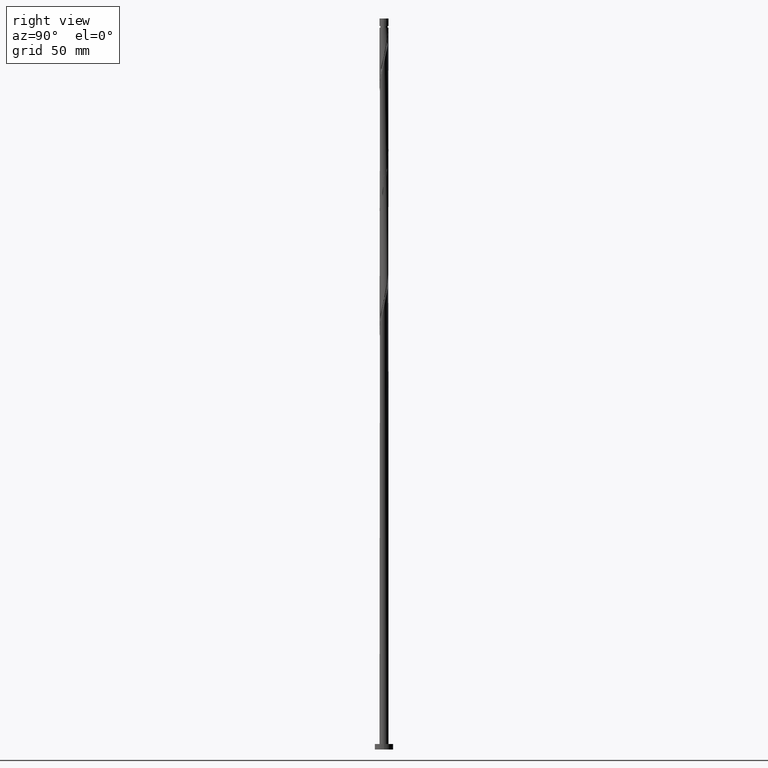
[diagram: clean part render]
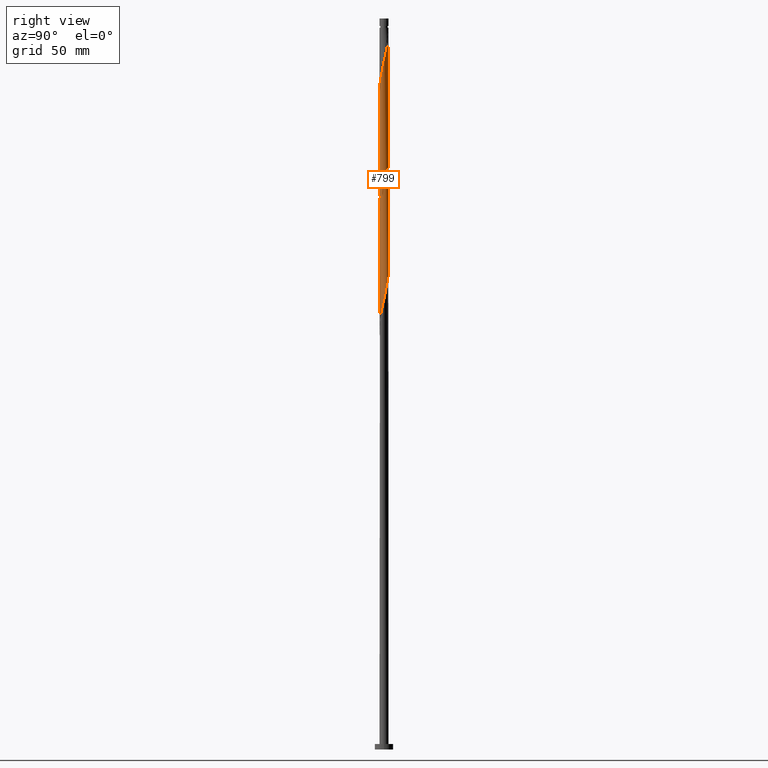
[diagram: same view with one face highlighted and labeled with its STEP entity id]
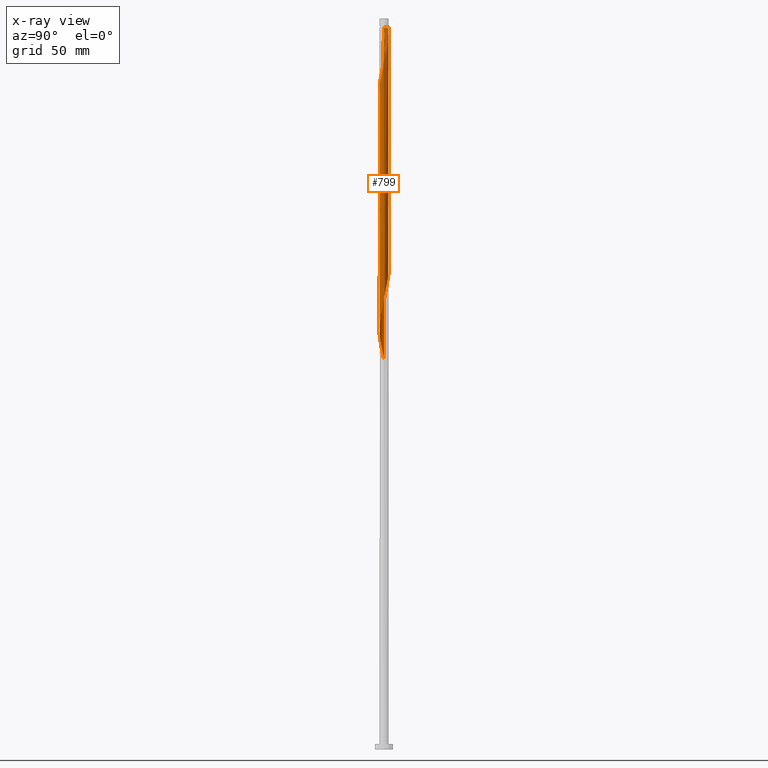
[diagram: x-ray of the same camera — body ghosted, the highlighted face saturated]
A machine part, right view. The second image highlights one B-rep face of the part: STEP entity #799.
The next image is the same camera in x-ray: the body ghosted, the highlighted face saturated — about 0% of this face is hidden behind the body in this view.
In plain terms, the highlighted cylindrical surface (bore or boss wall) has radius 2.5 mm, axis along (-0, -0, -1).
Its self-contained STEP definition (entity closure, byte-faithful):
#11 = CARTESIAN_POINT ( 'NONE',  ( -0.2399883421524077465, 2.502288696838027349, 393.8228365600629104 ) ) ;
#28 = CARTESIAN_POINT ( 'NONE',  ( -2.463495284930619089, -0.5002340530361988336, 344.9339476711741668 ) ) ;
#37 = CARTESIAN_POINT ( 'NONE',  ( 0.2855110527933026887, 2.497504067148895945, 391.6006143378407955 ) ) ;
#40 = CARTESIAN_POINT ( 'NONE',  ( 2.500000000000000000, 3.061616997868383141E-16, 400.0000000000000000 ) ) ;
#41 = CARTESIAN_POINT ( 'NONE',  ( 2.020146441809246962, 1.496011858354682866, 320.4895032267296529 ) ) ;
#45 = CARTESIAN_POINT ( 'NONE',  ( -0.5420216487456060994, -2.440535296260047282, 357.1561698933962816 ) ) ;
#49 = CARTESIAN_POINT ( 'NONE',  ( 2.483822478550887336, 0.2839469933725844997, 314.9339476711741668 ) ) ;
#57 = DIRECTION ( 'NONE',  ( -1.000000000000000000, 0.000000000000000000, 0.000000000000000000 ) ) ;
#58 = CARTESIAN_POINT ( 'NONE',  ( 1.450987902325817869, 2.035837446188699218, 323.8228365600630241 ) ) ;
#68 = CARTESIAN_POINT ( 'NONE',  ( -2.500000000000000444, -2.242262313099710403E-17, 347.0593909146955411 ) ) ;
#75 = CARTESIAN_POINT ( 'NONE',  ( -2.453978446956473825, -0.5450072555163725241, 282.7117254489517109 ) ) ;
#85 = CARTESIAN_POINT ( 'NONE',  ( 1.276653745726374023, -2.165455688813606283, 302.7117254489519382 ) ) ;
#87 = DIRECTION ( 'NONE',  ( -0.000000000000000000, -0.000000000000000000, -1.000000000000000000 ) ) ;
#96 = CARTESIAN_POINT ( 'NONE',  ( 0.7549990949542226826, 2.397711303161974339, 260.4895032267295960 ) ) ;
#99 = CARTESIAN_POINT ( 'NONE',  ( 2.500000000000000444, 5.605655782749277116E-16, 313.7260575813623404 ) ) ;
#105 = CARTESIAN_POINT ( 'NONE',  ( 2.153593095974917215, 1.269660102928799050, 252.7117254489517961 ) ) ;
#114 = CARTESIAN_POINT ( 'NONE',  ( 2.488580897537957526, -0.2386736609037020673, 246.0450587822851958 ) ) ;
#123 = EDGE_LOOP ( 'NONE', ( #1294, #1191, #462, #439, #1424, #124, #1151, #1596 ) ) ;
#124 = ORIENTED_EDGE ( 'NONE', *, *, #242, .F. ) ;
#135 = CARTESIAN_POINT ( 'NONE',  ( 2.463495284930614204, -0.5002340530361990556, 244.9339476711740815 ) ) ;
#143 = CARTESIAN_POINT ( 'NONE',  ( -0.7549990949542216834, -2.397711303161975227, 227.1561698933962816 ) ) ;
#153 = CARTESIAN_POINT ( 'NONE',  ( 2.020146441809247850, -1.496011858354687973, 369.3783921156185670 ) ) ;
#156 = CARTESIAN_POINT ( 'NONE',  ( -2.500000000000000000, 0.000000000000000000, 400.0000000000000000 ) ) ;
#162 = CARTESIAN_POINT ( 'NONE',  ( 1.276653745726379130, 2.165455688813608504, 387.1561698933962248 ) ) ;
#166 = CARTESIAN_POINT ( 'NONE',  ( -0.2855110527933011899, 2.497504067148891949, 331.6006143378406819 ) ) ;
#169 = CARTESIAN_POINT ( 'NONE',  ( 2.384576389766585702, 0.7508631309152021815, 379.3783921156184533 ) ) ;
#173 = EDGE_CURVE ( 'NONE', #748, #1415, #1579, .T. ) ;
#180 = CARTESIAN_POINT ( 'NONE',  ( 1.487816548864316690, 2.009079868229606269, 386.0450587822851958 ) ) ;
#188 = CARTESIAN_POINT ( 'NONE',  ( 0.000000000000000000, 0.000000000000000000, 394.9339476711740531 ) ) ;
#191 = CARTESIAN_POINT ( 'NONE',  ( -0.7985322446979098432, -2.383566525371198619, 356.0450587822851958 ) ) ;
#195 = CARTESIAN_POINT ( 'NONE',  ( -0.02276135532044734275, 2.499896381993457872, 330.4895032267296529 ) ) ;
#202 = CARTESIAN_POINT ( 'NONE',  ( 0.000000000000000000, 0.000000000000000000, 400.0000000000000000 ) ) ;
#222 = CARTESIAN_POINT ( 'NONE',  ( 1.037592995212140989, -2.274511107092400231, 301.6006143378408524 ) ) ;
#230 = CARTESIAN_POINT ( 'NONE',  ( -0.5420216487456041010, 2.440535296260043729, 266.0450587822851958 ) ) ;
#237 = AXIS2_PLACEMENT_3D ( 'NONE', #188, #1208, #1654 ) ;
#240 = CARTESIAN_POINT ( 'NONE',  ( -2.463495284930614204, 0.5002340530361987225, 278.2672810045073675 ) ) ;
#242 = EDGE_CURVE ( 'NONE', #1886, #1011, #1652, .T. ) ;
#248 = CARTESIAN_POINT ( 'NONE',  ( -0.7549990949542216834, -2.397711303161975227, 293.8228365600629104 ) ) ;
#257 = CARTESIAN_POINT ( 'NONE',  ( -0.4974937185533805373, 2.450000000000672085, 394.9339476711740531 ) ) ;
#274 = CARTESIAN_POINT ( 'NONE',  ( -2.305657494602547875, 1.001492208794207084, 342.7117254489518245 ) ) ;
#287 = CARTESIAN_POINT ( 'NONE',  ( 1.873015379995216279, -1.655842198490355965, 239.3783921156185102 ) ) ;
#298 = CARTESIAN_POINT ( 'NONE',  ( 2.453978446956473825, 0.5450072555163718580, 249.3783921156185386 ) ) ;
#310 = CARTESIAN_POINT ( 'NONE',  ( -2.305657494602551427, -1.001492208794207972, 347.1561698933963953 ) ) ;
#318 = CARTESIAN_POINT ( 'NONE',  ( 0.7549990949542207952, -2.397711303161981000, 362.7117254489518814 ) ) ;
#327 = CARTESIAN_POINT ( 'NONE',  ( 2.370509098548533533, -0.7941578015096472098, 372.7117254489518814 ) ) ;
#339 = CARTESIAN_POINT ( 'NONE',  ( -1.487816548864312916, 2.009079868229604049, 337.1561698933963385 ) ) ;
#343 = CARTESIAN_POINT ( 'NONE',  ( 2.047051407988187410, 1.458980349335109006, 382.7117254489518814 ) ) ;
#358 = CARTESIAN_POINT ( 'NONE',  ( -1.450987902325817203, -2.035837446188699662, 290.4895032267295392 ) ) ;
#368 = CARTESIAN_POINT ( 'NONE',  ( 2.384576389766580373, -0.7508631309152045130, 310.4895032267295960 ) ) ;
#377 = CARTESIAN_POINT ( 'NONE',  ( -1.037592995212140989, 2.274511107092400231, 268.2672810045074243 ) ) ;
#386 = CARTESIAN_POINT ( 'NONE',  ( 1.487816548864312693, -2.009079868229604493, 303.8228365600628536 ) ) ;
#397 = CARTESIAN_POINT ( 'NONE',  ( -2.153593095974917215, -1.269660102928799050, 286.0450587822852526 ) ) ;
#407 = CARTESIAN_POINT ( 'NONE',  ( 2.047051407988181193, -1.458980349335108784, 240.4895032267296813 ) ) ;
#415 = CARTESIAN_POINT ( 'NONE',  ( -2.370509098548531757, -0.7941578015096437682, 217.1561698933963385 ) ) ;
#424 = CARTESIAN_POINT ( 'NONE',  ( 1.698979352002251808, -1.852704047645603147, 238.2672810045074243 ) ) ;
#432 = CARTESIAN_POINT ( 'NONE',  ( -0.2399883421524073857, -2.502288696838022908, 229.3783921156185102 ) ) ;
#439 = ORIENTED_EDGE ( 'NONE', *, *, #943, .T. ) ;
#442 = CARTESIAN_POINT ( 'NONE',  ( 0.5420216487456031018, -2.440535296260043729, 232.7117254489518814 ) ) ;
#462 = ORIENTED_EDGE ( 'NONE', *, *, #1627, .F. ) ;
#463 = CARTESIAN_POINT ( 'NONE',  ( 0.2399883421524056648, -2.502288696838027349, 360.4895032267296529 ) ) ;
#466 = DIRECTION ( 'NONE',  ( -0.000000000000000000, -0.000000000000000000, -1.000000000000000000 ) ) ;
#472 = CARTESIAN_POINT ( 'NONE',  ( -0.4974937185533805373, 2.450000000000672085, 394.9339476711740531 ) ) ;
#476 = CARTESIAN_POINT ( 'NONE',  ( 2.370509098548532201, 0.7941578015096426579, 317.1561698933962816 ) ) ;
#479 = CARTESIAN_POINT ( 'NONE',  ( 1.698979352002256027, 1.852704047645605367, 384.9339476711741668 ) ) ;
#488 = CARTESIAN_POINT ( 'NONE',  ( 2.453978446956477821, -0.5450072555163764099, 373.8228365600629104 ) ) ;
#500 = CARTESIAN_POINT ( 'NONE',  ( 2.463495284930614204, -0.5002340530361990556, 311.6006143378407387 ) ) ;
#518 = CARTESIAN_POINT ( 'NONE',  ( 1.698979352002251808, -1.852704047645603147, 304.9339476711741099 ) ) ;
#526 = CARTESIAN_POINT ( 'NONE',  ( 0.2855110527933008013, -2.497504067148891949, 298.2672810045073675 ) ) ;
#544 = CARTESIAN_POINT ( 'NONE',  ( 1.237012764418925936, 2.188342420042401759, 258.2672810045074243 ) ) ;
#552 = CARTESIAN_POINT ( 'NONE',  ( -1.237012764418925492, -2.188342420042401759, 224.9339476711741099 ) ) ;
#565 = CARTESIAN_POINT ( 'NONE',  ( -2.047051407988182525, 1.458980349335108118, 340.4895032267295960 ) ) ;
#570 = CARTESIAN_POINT ( 'NONE',  ( 0.02276135532044670784, -2.499896381993457428, 230.4895032267296244 ) ) ;
#575 = EDGE_CURVE ( 'NONE', #748, #1031, #1776, .T. ) ;
#594 = VERTEX_POINT ( 'NONE', #897 ) ;
#603 = CARTESIAN_POINT ( 'NONE',  ( -2.500000000000004441, 1.180924818232504868E-15, 342.8085044276526219 ) ) ;
#604 = VECTOR ( 'NONE', #466, 1000.000000000000000 ) ;
#613 = CARTESIAN_POINT ( 'NONE',  ( 2.176354451295368087, 1.230236279064657712, 381.6006143378406819 ) ) ;
#617 = DIRECTION ( 'NONE',  ( -0.000000000000000000, -0.000000000000000000, -1.000000000000000000 ) ) ;
#629 = CARTESIAN_POINT ( 'NONE',  ( -0.2855110527933024667, -2.497504067148895945, 358.2672810045074812 ) ) ;
#647 = CARTESIAN_POINT ( 'NONE',  ( -2.500000000000000444, -1.621903073142123928E-15, 213.7260575813622552 ) ) ;
#648 = CARTESIAN_POINT ( 'NONE',  ( 2.305657494602547430, -1.001492208794207972, 309.3783921156185102 ) ) ;
#659 = CARTESIAN_POINT ( 'NONE',  ( -2.483822478550887336, -0.2839469933725847772, 281.6006143378407955 ) ) ;
#669 = CARTESIAN_POINT ( 'NONE',  ( -2.488580897537957526, 0.2386736609037011514, 279.3783921156185670 ) ) ;
#679 = CARTESIAN_POINT ( 'NONE',  ( 2.047051407988181193, -1.458980349335108784, 307.1561698933963385 ) ) ;
#687 = CARTESIAN_POINT ( 'NONE',  ( 2.176354451295364090, -1.230236279064657490, 241.6006143378408240 ) ) ;
#705 = CARTESIAN_POINT ( 'NONE',  ( 1.664963040232708247, 1.883332472334996455, 256.0450587822851958 ) ) ;
#714 = CARTESIAN_POINT ( 'NONE',  ( 2.370509098548532201, 0.7941578015096426579, 250.4895032267296244 ) ) ;
#725 = CARTESIAN_POINT ( 'NONE',  ( -1.664963040232708025, -1.883332472334996677, 222.7117254489519098 ) ) ;
#733 = CARTESIAN_POINT ( 'NONE',  ( 2.287039750140592798, -1.043308347502918565, 371.6006143378407955 ) ) ;
#748 = VERTEX_POINT ( 'NONE', #1073 ) ;
#757 = CARTESIAN_POINT ( 'NONE',  ( 0.02276135532044929258, 2.499896381993460981, 392.7117254489518245 ) ) ;
#763 = CARTESIAN_POINT ( 'NONE',  ( 0.7549990949542226826, 2.397711303161974339, 327.1561698933962816 ) ) ;
#766 = CARTESIAN_POINT ( 'NONE',  ( -2.047051407988186522, -1.458980349335109228, 349.3783921156186807 ) ) ;
#778 = DIRECTION ( 'NONE',  ( -0.000000000000000000, -0.000000000000000000, -1.000000000000000000 ) ) ;
#780 = CARTESIAN_POINT ( 'NONE',  ( -0.5420216487456041010, 2.440535296260043729, 332.7117254489518245 ) ) ;
#791 = CARTESIAN_POINT ( 'NONE',  ( -1.664963040232708025, -1.883332472334996677, 289.3783921156185102 ) ) ;
#799 = ADVANCED_FACE ( 'NONE', ( #1511 ), #1670, .T. ) ;
#801 = CARTESIAN_POINT ( 'NONE',  ( 0.7985322446979064015, -2.383566525371196398, 300.4895032267297097 ) ) ;
#809 = CARTESIAN_POINT ( 'NONE',  ( -1.237012764418925492, -2.188342420042401759, 291.6006143378407955 ) ) ;
#819 = CARTESIAN_POINT ( 'NONE',  ( 2.488580897537957526, -0.2386736609037020673, 312.7117254489518814 ) ) ;
#828 = CARTESIAN_POINT ( 'NONE',  ( 2.500000000000000888, -0.1196099982168686432, 313.2175090557983026 ) ) ;
#854 = VERTEX_POINT ( 'NONE', #647 ) ;
#861 = CARTESIAN_POINT ( 'NONE',  ( -2.500000000000000444, -2.242262313099710403E-17, 347.0593909146955411 ) ) ;
#865 = CARTESIAN_POINT ( 'NONE',  ( -0.4974937185533138684, -2.449999999999998845, 228.2672810045074243 ) ) ;
#876 = CARTESIAN_POINT ( 'NONE',  ( 2.020146441809246962, 1.496011858354682866, 253.8228365600629957 ) ) ;
#886 = CARTESIAN_POINT ( 'NONE',  ( 1.873015379995221386, 1.655842198490355521, 383.8228365600628536 ) ) ;
#894 = CARTESIAN_POINT ( 'NONE',  ( 2.483822478550890889, -0.2839469933725862205, 374.9339476711739962 ) ) ;
#897 = CARTESIAN_POINT ( 'NONE',  ( -2.500000000000004441, 1.180924818232504868E-15, 342.8085044276526219 ) ) ;
#898 = CARTESIAN_POINT ( 'NONE',  ( 1.664963040232708247, 1.883332472334996455, 322.7117254489518245 ) ) ;
#901 = CARTESIAN_POINT ( 'NONE',  ( 0.5420216487456075427, 2.440535296260046838, 390.4895032267295392 ) ) ;
#906 = CARTESIAN_POINT ( 'NONE',  ( -1.873015379995216945, 1.655842198490355077, 339.3783921156185670 ) ) ;
#909 =( BOUNDED_CURVE ( )  B_SPLINE_CURVE ( 2, ( #1811, #828, #819, #500, #368, #648, #1400, #679, #955, #518, #386, #85, #222, #801, #974, #526, #1084, #1559, #1234, #248, #1671, #809, #358, #791, #1408, #1258, #397, #1821, #1390, #75, #659, #1243, #669, #240, #1102, #963, #935, #1379, #1093, #1681, #1690, #1110, #377, #1543, #230, #1249, #1839, #1698, #1552, #96, #1849, #544, #1022, #705, #1449, #876, #105, #1607, #714, #298, #1859, #1887, #114, #135, #1295, #1012, #687, #407, #287, #424, #1597, #1458, #1131, #1138, #442, #1753, #570, #432, #865, #143, #1425, #552, #1155, #725, #1267, #1742, #1146, #1716, #415, #1307, #982, #1732, #1438 ),
 .UNSPECIFIED., .F., .F. ) 
 B_SPLINE_CURVE_WITH_KNOTS ( ( 3, 2, 2, 2, 2, 2, 2, 2, 2, 2, 2, 2, 2, 2, 2, 2, 2, 2, 2, 2, 2, 2, 2, 2, 2, 2, 2, 2, 2, 2, 2, 2, 2, 2, 2, 2, 2, 2, 2, 2, 2, 2, 2, 2, 2, 2, 3 ),
 ( 0.5545286012773111839, 0.5583333333333333481, 0.5666666666666666519, 0.5749999999999999556, 0.5833333333333333703, 0.5916666666666666741, 0.5999999999999999778, 0.6083333333333332815, 0.6166666666666666963, 0.6250000000000000000, 0.6333333333333333037, 0.6416666666666667185, 0.6500000000000000222, 0.6583333333333333259, 0.6666666666666666297, 0.6750000000000000444, 0.6833333333333333481, 0.6916666666666666519, 0.6999999999999999556, 0.7083333333333333703, 0.7166666666666666741, 0.7249999999999999778, 0.7333333333333332815, 0.7416666666666666963, 0.7500000000000000000, 0.7583333333333333037, 0.7666666666666667185, 0.7750000000000000222, 0.7833333333333333259, 0.7916666666666666297, 0.8000000000000000444, 0.8083333333333333481, 0.8166666666666666519, 0.8249999999999999556, 0.8333333333333333703, 0.8416666666666666741, 0.8499999999999999778, 0.8583333333333332815, 0.8666666666666666963, 0.8750000000000000000, 0.8833333333333333037, 0.8916666666666667185, 0.9000000000000000222, 0.9083333333333333259, 0.9166666666666665186, 0.9250000000000000444, 0.9295286012773114059 ),
 .UNSPECIFIED. ) 
 CURVE ( )  GEOMETRIC_REPRESENTATION_ITEM ( )  RATIONAL_B_SPLINE_CURVE ( ( 0.9066196499552554577, 0.9068171577856680710, 0.9090909090909671253, 0.9041108139712153990, 0.9090909090909671253, 0.9041108139712153990, 0.9090909090909671253, 0.9041108139712153990, 0.9090909090909671253, 0.9041108139712153990, 0.9090909090909671253, 0.9041108139712153990, 0.9090909090909671253, 0.9041108139712153990, 0.9090909090909671253, 0.9041108139712153990, 0.9090909090909671253, 0.9041108139712153990, 0.9090909090909671253, 0.9041108139712153990, 0.9090909090909671253, 0.9041108139712153990, 0.9090909090909671253, 0.9041108139712153990, 0.9090909090909671253, 0.9041108139712153990, 0.9090909090909671253, 0.9041108139712153990, 0.9090909090909671253, 0.9041108139712153990, 0.9090909090909671253, 0.9041108139712153990, 0.9090909090909671253, 0.9041108139712153990, 0.9090909090909671253, 0.9041108139712153990, 0.9090909090909671253, 0.9041108139712153990, 0.9090909090909671253, 0.9041108139712153990, 0.9090909090909671253, 0.9041108139712153990, 0.9090909090909671253, 0.9041108139712153990, 0.9090909090909671253, 0.9041108139712153990, 0.9090909090909671253, 0.9041108139712153990, 0.9090909090909671253, 0.9041108139712153990, 0.9090909090909671253, 0.9041108139712153990, 0.9090909090909671253, 0.9041108139712153990, 0.9090909090909671253, 0.9041108139712153990, 0.9090909090909671253, 0.9041108139712153990, 0.9090909090909671253, 0.9041108139712153990, 0.9090909090909671253, 0.9041108139712153990, 0.9090909090909671253, 0.9041108139712153990, 0.9090909090909671253, 0.9041108139712153990, 0.9090909090909671253, 0.9041108139712153990, 0.9090909090909671253, 0.9041108139712153990, 0.9090909090909671253, 0.9041108139712153990, 0.9090909090909671253, 0.9041108139712153990, 0.9090909090909671253, 0.9041108139712153990, 0.9090909090909671253, 0.9041108139712153990, 0.9090909090909671253, 0.9041108139712153990, 0.9090909090909671253, 0.9041108139712153990, 0.9090909090909671253, 0.9041108139712153990, 0.9090909090909671253, 0.9041108139712153990, 0.9090909090909671253, 0.9041108139712153990, 0.9090909090909671253, 0.9041108139712153990, 0.9090909090909671253, 0.9063845652765143424, 0.9066196499552554577 ) ) 
 REPRESENTATION_ITEM ( '' )  );
#912 = CARTESIAN_POINT ( 'NONE',  ( -2.384576389766585702, -0.7508631309152030697, 346.0450587822851389 ) ) ;
#917 = CARTESIAN_POINT ( 'NONE',  ( 2.453978446956473825, 0.5450072555163718580, 316.0450587822851389 ) ) ;
#935 = CARTESIAN_POINT ( 'NONE',  ( -2.176354451295364090, 1.230236279064657046, 274.9339476711741099 ) ) ;
#943 = EDGE_CURVE ( 'NONE', #594, #854, #1514, .T. ) ;
#955 = CARTESIAN_POINT ( 'NONE',  ( 1.873015379995216279, -1.655842198490355965, 306.0450587822851958 ) ) ;
#963 = CARTESIAN_POINT ( 'NONE',  ( -2.305657494602547875, 1.001492208794207084, 276.0450587822853095 ) ) ;
#974 = CARTESIAN_POINT ( 'NONE',  ( 0.5420216487456031018, -2.440535296260043729, 299.3783921156185670 ) ) ;
#982 = CARTESIAN_POINT ( 'NONE',  ( -2.483822478550887336, -0.2839469933725847772, 214.9339476711740815 ) ) ;
#1011 = VERTEX_POINT ( 'NONE', #99 ) ;
#1012 = CARTESIAN_POINT ( 'NONE',  ( 2.305657494602547430, -1.001492208794207972, 242.7117254489518530 ) ) ;
#1022 = CARTESIAN_POINT ( 'NONE',  ( 1.450987902325817869, 2.035837446188699218, 257.1561698933962816 ) ) ;
#1031 = VERTEX_POINT ( 'NONE', #68 ) ;
#1033 = CARTESIAN_POINT ( 'NONE',  ( -1.037592995212143432, -2.274511107092404227, 354.9339476711739394 ) ) ;
#1039 = CARTESIAN_POINT ( 'NONE',  ( -0.7985322446979069566, 2.383566525371195954, 333.8228365600630241 ) ) ;
#1042 = CARTESIAN_POINT ( 'NONE',  ( 0.4974937185533135353, -2.450000000000003286, 361.6006143378406819 ) ) ;
#1048 =( BOUNDED_CURVE ( )  B_SPLINE_CURVE ( 2, ( #861, #1593, #1891, #1473, #1142, #274, #1290, #565, #906, #1512, #339, #1504, #1794, #1039, #780, #166, #195, #1625, #1187, #763, #1785, #1360, #58, #898, #1777, #41, #1216, #1496, #476, #917, #49, #1178, #1369 ),
 .UNSPECIFIED., .F., .T. ) 
 B_SPLINE_CURVE_WITH_KNOTS ( ( 3, 2, 2, 2, 2, 2, 2, 2, 2, 2, 2, 2, 2, 2, 2, 2, 3 ),
 ( 0.4295286012773114614, 0.4333333333333333481, 0.4416666666666666519, 0.4500000000000000111, 0.4583333333333333148, 0.4666666666666666741, 0.4749999999999999778, 0.4833333333333333370, 0.4916666666666666408, 0.5000000000000000000, 0.5083333333333333037, 0.5166666666666667185, 0.5250000000000000222, 0.5333333333333333259, 0.5416666666666666297, 0.5500000000000000444, 0.5545286012773111839 ),
 .UNSPECIFIED. ) 
 CURVE ( )  GEOMETRIC_REPRESENTATION_ITEM ( )  RATIONAL_B_SPLINE_CURVE ( ( 0.9066196499552554577, 0.9068171577856681820, 0.9090909090909671253, 0.9041108139712153990, 0.9090909090909671253, 0.9041108139712153990, 0.9090909090909671253, 0.9041108139712153990, 0.9090909090909671253, 0.9041108139712153990, 0.9090909090909671253, 0.9041108139712153990, 0.9090909090909671253, 0.9041108139712153990, 0.9090909090909671253, 0.9041108139712153990, 0.9090909090909671253, 0.9041108139712153990, 0.9090909090909671253, 0.9041108139712153990, 0.9090909090909671253, 0.9041108139712153990, 0.9090909090909671253, 0.9041108139712153990, 0.9090909090909671253, 0.9041108139712153990, 0.9090909090909671253, 0.9041108139712153990, 0.9090909090909671253, 0.9041108139712153990, 0.9090909090909671253, 0.9063845652765145644, 0.9066196499552554577 ) ) 
 REPRESENTATION_ITEM ( '' )  );
#1060 = CARTESIAN_POINT ( 'NONE',  ( 1.237012764418926603, -2.188342420042407976, 364.9339476711740531 ) ) ;
#1070 = CARTESIAN_POINT ( 'NONE',  ( 1.842554741020978826, -1.689672165344843879, 368.2672810045073675 ) ) ;
#1073 = CARTESIAN_POINT ( 'NONE',  ( -2.499999999999964029, 0.000000000000000000, 394.9339476711740531 ) ) ;
#1084 = CARTESIAN_POINT ( 'NONE',  ( 0.02276135532044670784, -2.499896381993457428, 297.1561698933962816 ) ) ;
#1093 = CARTESIAN_POINT ( 'NONE',  ( -1.873015379995216945, 1.655842198490355077, 272.7117254489518245 ) ) ;
#1102 = CARTESIAN_POINT ( 'NONE',  ( -2.384576389766580373, 0.7508631309152032918, 277.1561698933962816 ) ) ;
#1110 = CARTESIAN_POINT ( 'NONE',  ( -1.276653745726374689, 2.165455688813606283, 269.3783921156185102 ) ) ;
#1122 = VECTOR ( 'NONE', #617, 1000.000000000000000 ) ;
#1131 = CARTESIAN_POINT ( 'NONE',  ( 1.037592995212140989, -2.274511107092400231, 234.9339476711740247 ) ) ;
#1138 = CARTESIAN_POINT ( 'NONE',  ( 0.7985322446979064015, -2.383566525371196398, 233.8228365600629388 ) ) ;
#1142 = CARTESIAN_POINT ( 'NONE',  ( -2.384576389766580373, 0.7508631309152032918, 343.8228365600629672 ) ) ;
#1146 = CARTESIAN_POINT ( 'NONE',  ( -2.153593095974917215, -1.269660102928799050, 219.3783921156185102 ) ) ;
#1151 = ORIENTED_EDGE ( 'NONE', *, *, #242, .T. ) ;
#1155 = CARTESIAN_POINT ( 'NONE',  ( -1.450987902325817203, -2.035837446188699662, 223.8228365600629957 ) ) ;
#1174 = CARTESIAN_POINT ( 'NONE',  ( -1.276653745726378242, -2.165455688813609392, 353.8228365600631378 ) ) ;
#1178 = CARTESIAN_POINT ( 'NONE',  ( 2.500000000000000444, 0.1424343436160870335, 314.3316488907468056 ) ) ;
#1183 = CARTESIAN_POINT ( 'NONE',  ( -1.873015379995220941, -1.655842198490356854, 350.4895032267295392 ) ) ;
#1187 = CARTESIAN_POINT ( 'NONE',  ( 0.4974937185533142014, 2.449999999999998845, 328.2672810045074812 ) ) ;
#1191 = ORIENTED_EDGE ( 'NONE', *, *, #173, .T. ) ;
#1192 = CARTESIAN_POINT ( 'NONE',  ( 0.7985322446979101763, 2.383566525371198619, 389.3783921156186238 ) ) ;
#1202 = CARTESIAN_POINT ( 'NONE',  ( 1.664963040232709579, -1.883332472335000896, 367.1561698933963385 ) ) ;
#1208 = DIRECTION ( 'NONE',  ( -0.000000000000000000, -0.000000000000000000, -1.000000000000000000 ) ) ;
#1211 = CARTESIAN_POINT ( 'NONE',  ( 2.153593095974919436, -1.269660102928803491, 370.4895032267296529 ) ) ;
#1216 = CARTESIAN_POINT ( 'NONE',  ( 2.153593095974917215, 1.269660102928799050, 319.3783921156185102 ) ) ;
#1220 = EDGE_CURVE ( 'NONE', #1031, #1011, #1048, .T. ) ;
#1234 = CARTESIAN_POINT ( 'NONE',  ( -0.4974937185533138684, -2.449999999999998845, 294.9339476711741668 ) ) ;
#1243 = CARTESIAN_POINT ( 'NONE',  ( -2.513666510145300848, -0.02288673122879644750, 280.4895032267295960 ) ) ;
#1249 = CARTESIAN_POINT ( 'NONE',  ( -0.2855110527933011899, 2.497504067148891949, 264.9339476711741099 ) ) ;
#1258 = CARTESIAN_POINT ( 'NONE',  ( -2.020146441809246074, -1.496011858354683755, 287.1561698933963953 ) ) ;
#1260 = CARTESIAN_POINT ( 'NONE',  ( -2.500000000000000000, 0.000000000000000000, 400.0000000000000000 ) ) ;
#1267 = CARTESIAN_POINT ( 'NONE',  ( -1.842554741020976827, -1.689672165344840327, 221.6006143378407671 ) ) ;
#1278 = EDGE_CURVE ( 'NONE', #1011, #854, #909, .T. ) ;
#1290 = CARTESIAN_POINT ( 'NONE',  ( -2.176354451295364090, 1.230236279064657046, 341.6006143378407955 ) ) ;
#1294 = ORIENTED_EDGE ( 'NONE', *, *, #575, .F. ) ;
#1295 = CARTESIAN_POINT ( 'NONE',  ( 2.384576389766580373, -0.7508631309152045130, 243.8228365600630525 ) ) ;
#1300 = AXIS2_PLACEMENT_3D ( 'NONE', #202, #778, #57 ) ;
#1302 =( BOUNDED_CURVE ( )  B_SPLINE_CURVE ( 2, ( #603, #1781, #1799, #28, #912, #310, #1492, #766, #1183, #1348, #1639, #1174, #1033, #191, #45, #629, #1478, #463, #1042, #318, #1631, #1060, #1486, #1202, #1070, #153, #1211, #733, #327, #488, #894, #1620, #1339, #1657, #169, #1318, #613, #343, #886, #479, #180, #162, #1469, #1192, #901, #37, #757, #11, #472 ),
 .UNSPECIFIED., .F., .F. ) 
 B_SPLINE_CURVE_WITH_KNOTS ( ( 3, 2, 2, 2, 2, 2, 2, 2, 2, 2, 2, 2, 2, 2, 2, 2, 2, 2, 2, 2, 2, 2, 2, 2, 3 ),
 ( 0.5545286012773115170, 0.5583333333333333481, 0.5666666666666666519, 0.5749999999999999556, 0.5833333333333332593, 0.5916666666666666741, 0.5999999999999999778, 0.6083333333333333925, 0.6166666666666666963, 0.6250000000000000000, 0.6333333333333333037, 0.6416666666666666075, 0.6500000000000001332, 0.6583333333333334370, 0.6666666666666668517, 0.6750000000000001554, 0.6833333333333334592, 0.6916666666666667629, 0.7000000000000000666, 0.7083333333333333703, 0.7166666666666667851, 0.7250000000000000888, 0.7333333333333335036, 0.7416666666666668073, 0.7500000000000001110 ),
 .UNSPECIFIED. ) 
 CURVE ( )  GEOMETRIC_REPRESENTATION_ITEM ( )  RATIONAL_B_SPLINE_CURVE ( ( 0.9066196499552625632, 0.9068171577856752874, 0.9090909090909743417, 0.9041108139712222824, 0.9090909090909743417, 0.9041108139712222824, 0.9090909090909743417, 0.9041108139712222824, 0.9090909090909743417, 0.9041108139712222824, 0.9090909090909743417, 0.9041108139712222824, 0.9090909090909743417, 0.9041108139712222824, 0.9090909090909743417, 0.9041108139712222824, 0.9090909090909743417, 0.9041108139712222824, 0.9090909090909743417, 0.9041108139712222824, 0.9090909090909743417, 0.9041108139712222824, 0.9090909090909743417, 0.9041108139712222824, 0.9090909090909743417, 0.9041108139712222824, 0.9090909090909743417, 0.9041108139712222824, 0.9090909090909743417, 0.9041108139712222824, 0.9090909090909743417, 0.9041108139712222824, 0.9090909090909743417, 0.9041108139712222824, 0.9090909090909743417, 0.9041108139712222824, 0.9090909090909743417, 0.9041108139712222824, 0.9090909090909743417, 0.9041108139712222824, 0.9090909090909743417, 0.9041108139712222824, 0.9090909090909743417, 0.9041108139712222824, 0.9090909090909743417, 0.9041108139712222824, 0.9090909090909743417, 0.9041108139712221714, 0.9090909090909744528 ) ) 
 REPRESENTATION_ITEM ( '' )  );
#1307 = CARTESIAN_POINT ( 'NONE',  ( -2.453978446956473825, -0.5450072555163725241, 216.0450587822851958 ) ) ;
#1318 = CARTESIAN_POINT ( 'NONE',  ( 2.305657494602551871, 1.001492208794206640, 380.4895032267296529 ) ) ;
#1339 = CARTESIAN_POINT ( 'NONE',  ( 2.488580897537961079, 0.2386736609036988477, 377.1561698933962816 ) ) ;
#1348 = CARTESIAN_POINT ( 'NONE',  ( -1.698979352002255805, -1.852704047645605812, 351.6006143378407387 ) ) ;
#1360 = CARTESIAN_POINT ( 'NONE',  ( 1.237012764418925936, 2.188342420042401759, 324.9339476711740531 ) ) ;
#1364 = CARTESIAN_POINT ( 'NONE',  ( 2.500000000000000000, 3.061616997868383141E-16, 394.9339476711740531 ) ) ;
#1369 = CARTESIAN_POINT ( 'NONE',  ( 2.500000000000000444, 5.605655782749277116E-16, 313.7260575813623404 ) ) ;
#1379 = CARTESIAN_POINT ( 'NONE',  ( -2.047051407988182525, 1.458980349335108118, 273.8228365600630241 ) ) ;
#1390 = CARTESIAN_POINT ( 'NONE',  ( -2.370509098548531757, -0.7941578015096437682, 283.8228365600629672 ) ) ;
#1400 = CARTESIAN_POINT ( 'NONE',  ( 2.176354451295364090, -1.230236279064657490, 308.2672810045074812 ) ) ;
#1408 = CARTESIAN_POINT ( 'NONE',  ( -1.842554741020976827, -1.689672165344840327, 288.2672810045073675 ) ) ;
#1415 = VERTEX_POINT ( 'NONE', #257 ) ;
#1424 = ORIENTED_EDGE ( 'NONE', *, *, #1278, .F. ) ;
#1425 = CARTESIAN_POINT ( 'NONE',  ( -0.9960059296865741985, -2.293026861602189381, 226.0450587822851674 ) ) ;
#1438 = CARTESIAN_POINT ( 'NONE',  ( -2.500000000000000444, -1.621903073142123731E-15, 213.7260575813622552 ) ) ;
#1449 = CARTESIAN_POINT ( 'NONE',  ( 1.842554741020976827, 1.689672165344840327, 254.9339476711741099 ) ) ;
#1458 = CARTESIAN_POINT ( 'NONE',  ( 1.276653745726374023, -2.165455688813606283, 236.0450587822851958 ) ) ;
#1469 = CARTESIAN_POINT ( 'NONE',  ( 1.037592995212143432, 2.274511107092404671, 388.2672810045074812 ) ) ;
#1473 = CARTESIAN_POINT ( 'NONE',  ( -2.463495284930614204, 0.5002340530361987225, 344.9339476711741099 ) ) ;
#1478 = CARTESIAN_POINT ( 'NONE',  ( -0.02276135532044886930, -2.499896381993460981, 359.3783921156185102 ) ) ;
#1486 = CARTESIAN_POINT ( 'NONE',  ( 1.450987902325817425, -2.035837446188703659, 366.0450587822851958 ) ) ;
#1492 = CARTESIAN_POINT ( 'NONE',  ( -2.176354451295368087, -1.230236279064658378, 348.2672810045073106 ) ) ;
#1496 = CARTESIAN_POINT ( 'NONE',  ( 2.287039750140589245, 1.043308347502915456, 318.2672810045075380 ) ) ;
#1504 = CARTESIAN_POINT ( 'NONE',  ( -1.276653745726374689, 2.165455688813606283, 336.0450587822851958 ) ) ;
#1511 = FACE_OUTER_BOUND ( 'NONE', #123, .T. ) ;
#1512 = CARTESIAN_POINT ( 'NONE',  ( -1.698979352002252252, 1.852704047645602703, 338.2672810045073675 ) ) ;
#1514 = LINE ( 'NONE', #1260, #1648 ) ;
#1543 = CARTESIAN_POINT ( 'NONE',  ( -0.7985322446979069566, 2.383566525371195954, 267.1561698933962816 ) ) ;
#1552 = CARTESIAN_POINT ( 'NONE',  ( 0.4974937185533142014, 2.449999999999998845, 261.6006143378407387 ) ) ;
#1559 = CARTESIAN_POINT ( 'NONE',  ( -0.2399883421524073857, -2.502288696838022908, 296.0450587822851389 ) ) ;
#1579 = CIRCLE ( 'NONE', #237, 2.499999999999964029 ) ;
#1593 = CARTESIAN_POINT ( 'NONE',  ( -2.500000000000000000, 0.1196099982168770115, 346.5508423891315601 ) ) ;
#1596 = ORIENTED_EDGE ( 'NONE', *, *, #1220, .F. ) ;
#1597 = CARTESIAN_POINT ( 'NONE',  ( 1.487816548864312693, -2.009079868229604493, 237.1561698933963669 ) ) ;
#1607 = CARTESIAN_POINT ( 'NONE',  ( 2.287039750140589245, 1.043308347502915456, 251.6006143378408240 ) ) ;
#1620 = CARTESIAN_POINT ( 'NONE',  ( 2.513666510145305288, -0.02288673122879862978, 376.0450587822851958 ) ) ;
#1625 = CARTESIAN_POINT ( 'NONE',  ( 0.2399883421524063309, 2.502288696838022908, 329.3783921156185102 ) ) ;
#1627 = EDGE_CURVE ( 'NONE', #594, #1415, #1302, .T. ) ;
#1631 = CARTESIAN_POINT ( 'NONE',  ( 0.9960059296865733103, -2.293026861602193378, 363.8228365600629672 ) ) ;
#1639 = CARTESIAN_POINT ( 'NONE',  ( -1.487816548864316246, -2.009079868229606269, 352.7117254489518245 ) ) ;
#1648 = VECTOR ( 'NONE', #87, 1000.000000000000000 ) ;
#1652 = LINE ( 'NONE', #40, #1122 ) ;
#1654 = DIRECTION ( 'NONE',  ( -1.000000000000000000, 0.000000000000000000, 0.000000000000000000 ) ) ;
#1657 = CARTESIAN_POINT ( 'NONE',  ( 2.463495284930619089, 0.5002340530361986115, 378.2672810045074243 ) ) ;
#1670 = CYLINDRICAL_SURFACE ( 'NONE', #1300, 2.500000000000000000 ) ;
#1671 = CARTESIAN_POINT ( 'NONE',  ( -0.9960059296865741985, -2.293026861602189381, 292.7117254489518814 ) ) ;
#1681 = CARTESIAN_POINT ( 'NONE',  ( -1.698979352002252252, 1.852704047645602703, 271.6006143378407387 ) ) ;
#1690 = CARTESIAN_POINT ( 'NONE',  ( -1.487816548864312916, 2.009079868229604049, 270.4895032267295960 ) ) ;
#1698 = CARTESIAN_POINT ( 'NONE',  ( 0.2399883421524063309, 2.502288696838022908, 262.7117254489518814 ) ) ;
#1716 = CARTESIAN_POINT ( 'NONE',  ( -2.287039750140589245, -1.043308347502915900, 218.2672810045074243 ) ) ;
#1732 = CARTESIAN_POINT ( 'NONE',  ( -2.500000000000000444, -0.1424343436160810106, 214.3316488907468340 ) ) ;
#1742 = CARTESIAN_POINT ( 'NONE',  ( -2.020146441809246074, -1.496011858354683755, 220.4895032267296244 ) ) ;
#1753 = CARTESIAN_POINT ( 'NONE',  ( 0.2855110527933008013, -2.497504067148891949, 231.6006143378407387 ) ) ;
#1776 = LINE ( 'NONE', #156, #604 ) ;
#1777 = CARTESIAN_POINT ( 'NONE',  ( 1.842554741020976827, 1.689672165344840327, 321.6006143378407387 ) ) ;
#1781 = CARTESIAN_POINT ( 'NONE',  ( -2.500000000000004441, -0.1196099982168768588, 343.3170529532165460 ) ) ;
#1785 = CARTESIAN_POINT ( 'NONE',  ( 0.9960059296865743095, 2.293026861602189381, 326.0450587822852526 ) ) ;
#1794 = CARTESIAN_POINT ( 'NONE',  ( -1.037592995212140989, 2.274511107092400231, 334.9339476711741668 ) ) ;
#1799 = CARTESIAN_POINT ( 'NONE',  ( -2.488580897537961079, -0.2386736609037002632, 343.8228365600629104 ) ) ;
#1811 = CARTESIAN_POINT ( 'NONE',  ( 2.500000000000000444, 5.605655782749277116E-16, 313.7260575813623404 ) ) ;
#1821 = CARTESIAN_POINT ( 'NONE',  ( -2.287039750140589245, -1.043308347502915900, 284.9339476711741099 ) ) ;
#1839 = CARTESIAN_POINT ( 'NONE',  ( -0.02276135532044734275, 2.499896381993457872, 263.8228365600629672 ) ) ;
#1849 = CARTESIAN_POINT ( 'NONE',  ( 0.9960059296865743095, 2.293026861602189381, 259.3783921156185102 ) ) ;
#1859 = CARTESIAN_POINT ( 'NONE',  ( 2.483822478550887336, 0.2839469933725844997, 248.2672810045074243 ) ) ;
#1886 = VERTEX_POINT ( 'NONE', #1364 ) ;
#1887 = CARTESIAN_POINT ( 'NONE',  ( 2.513666510145300848, 0.02288673122879495911, 247.1561698933962532 ) ) ;
#1891 = CARTESIAN_POINT ( 'NONE',  ( -2.488580897537957526, 0.2386736609037011514, 346.0450587822852526 ) ) ;